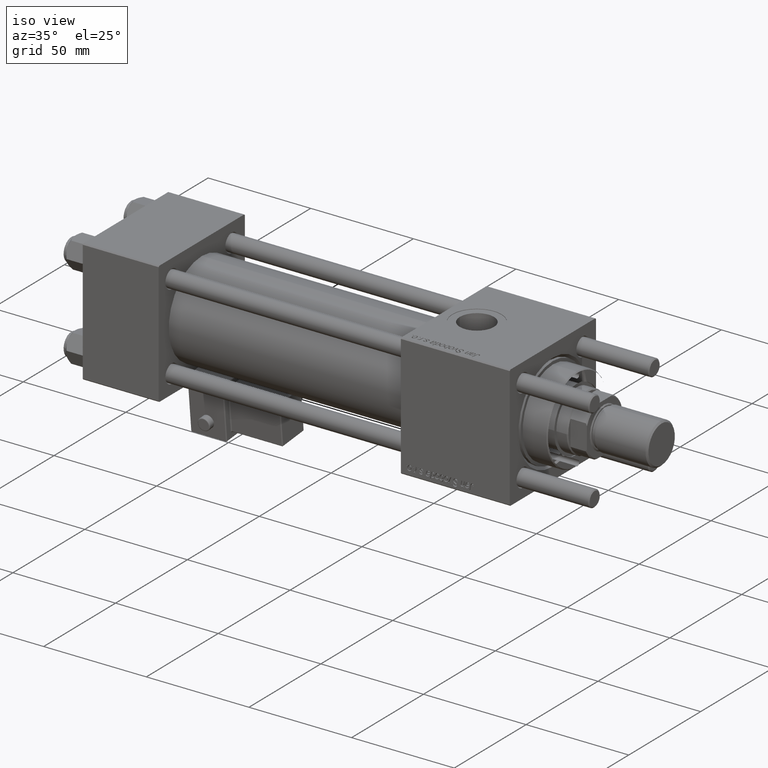
[diagram: clean part render]
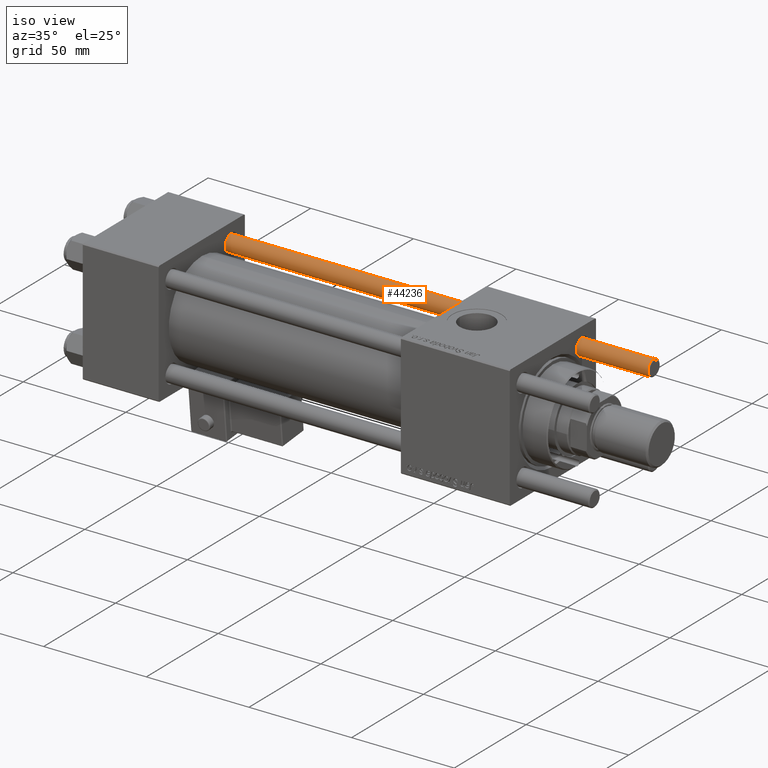
[diagram: same view with one face highlighted and labeled with its STEP entity id]
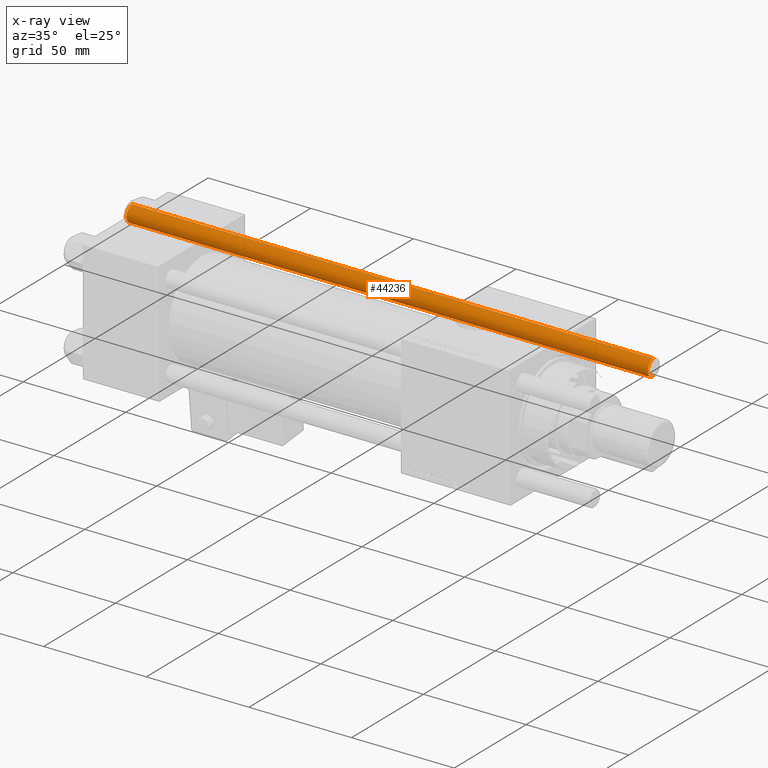
[diagram: x-ray of the same camera — body ghosted, the highlighted face saturated]
A machine part, iso view. The second image highlights one B-rep face of the part: STEP entity #44236.
The next image is the same camera in x-ray: the body ghosted, the highlighted face saturated — about 0% of this face is hidden behind the body in this view.
In plain terms, the highlighted cylindrical surface (edge-blend (fillet) strip) has radius 4 mm, axis along (1, -0, -0).
Its self-contained STEP definition (entity closure, byte-faithful):
#2575 = LINE ( 'NONE', #46277, #37410 ) ;
#3563 = VERTEX_POINT ( 'NONE', #29068 ) ;
#3618 = DIRECTION ( 'NONE',  ( 1.000000000000000000, 0.000000000000000000, 0.000000000000000000 ) ) ;
#4600 = CIRCLE ( 'NONE', #18472, 4.000000000000000000 ) ;
#7365 = DIRECTION ( 'NONE',  ( -0.000000000000000000, -0.000000000000000000, 1.000000000000000000 ) ) ;
#10125 = CYLINDRICAL_SURFACE ( 'NONE', #59187, 4.000000000000000000 ) ;
#10683 = CIRCLE ( 'NONE', #22587, 4.000000000000000000 ) ;
#11308 = EDGE_CURVE ( 'NONE', #3563, #60247, #4600, .T. ) ;
#12483 = VERTEX_POINT ( 'NONE', #42885 ) ;
#14666 = EDGE_CURVE ( 'NONE', #59440, #12483, #10683, .T. ) ;
#18472 = AXIS2_PLACEMENT_3D ( 'NONE', #30919, #7365, #3618 ) ;
#19669 = DIRECTION ( 'NONE',  ( 0.000000000000000000, 0.000000000000000000, -1.000000000000000000 ) ) ;
#22587 = AXIS2_PLACEMENT_3D ( 'NONE', #33925, #19669, #61261 ) ;
#24244 = EDGE_CURVE ( 'NONE', #12483, #3563, #35859, .T. ) ;
#24976 = DIRECTION ( 'NONE',  ( -0.000000000000000000, -0.000000000000000000, -1.000000000000000000 ) ) ;
#28701 = FACE_OUTER_BOUND ( 'NONE', #53152, .T. ) ;
#29068 = CARTESIAN_POINT ( 'NONE',  ( -4.000000000000000000, 0.000000000000000000, 0.5000000000000559552 ) ) ;
#30919 = CARTESIAN_POINT ( 'NONE',  ( 0.000000000000000000, 0.000000000000000000, 0.5000000000000559552 ) ) ;
#33087 = ORIENTED_EDGE ( 'NONE', *, *, #24244, .T. ) ;
#33265 = ORIENTED_EDGE ( 'NONE', *, *, #45991, .F. ) ;
#33925 = CARTESIAN_POINT ( 'NONE',  ( 0.000000000000000000, 0.000000000000000000, 254.4999999999999432 ) ) ;
#33963 = CARTESIAN_POINT ( 'NONE',  ( 0.000000000000000000, 0.000000000000000000, 255.0000000000000000 ) ) ;
#35859 = LINE ( 'NONE', #49534, #56454 ) ;
#37410 = VECTOR ( 'NONE', #40981, 1000.000000000000000 ) ;
#37691 = DIRECTION ( 'NONE',  ( -1.000000000000000000, 0.000000000000000000, 0.000000000000000000 ) ) ;
#40981 = DIRECTION ( 'NONE',  ( -0.000000000000000000, -0.000000000000000000, -1.000000000000000000 ) ) ;
#42885 = CARTESIAN_POINT ( 'NONE',  ( -4.000000000000000000, 0.000000000000000000, 254.4999999999999432 ) ) ;
#44236 = ADVANCED_FACE ( 'NONE', ( #28701 ), #10125, .T. ) ;
#44746 = CARTESIAN_POINT ( 'NONE',  ( 4.000000000000000000, 4.898587196589412829E-16, 254.4999999999999432 ) ) ;
#45991 = EDGE_CURVE ( 'NONE', #59440, #60247, #2575, .T. ) ;
#46277 = CARTESIAN_POINT ( 'NONE',  ( 4.000000000000000000, 4.898587196589412829E-16, 255.0000000000000000 ) ) ;
#47903 = ORIENTED_EDGE ( 'NONE', *, *, #14666, .T. ) ;
#49534 = CARTESIAN_POINT ( 'NONE',  ( -4.000000000000000000, 0.000000000000000000, 255.0000000000000000 ) ) ;
#52244 = CARTESIAN_POINT ( 'NONE',  ( 4.000000000000000000, 4.898587196589412829E-16, 0.5000000000000559552 ) ) ;
#53152 = EDGE_LOOP ( 'NONE', ( #33265, #47903, #33087, #57779 ) ) ;
#54488 = DIRECTION ( 'NONE',  ( -0.000000000000000000, -0.000000000000000000, -1.000000000000000000 ) ) ;
#56454 = VECTOR ( 'NONE', #54488, 1000.000000000000000 ) ;
#57779 = ORIENTED_EDGE ( 'NONE', *, *, #11308, .T. ) ;
#59187 = AXIS2_PLACEMENT_3D ( 'NONE', #33963, #24976, #37691 ) ;
#59440 = VERTEX_POINT ( 'NONE', #44746 ) ;
#60247 = VERTEX_POINT ( 'NONE', #52244 ) ;
#61261 = DIRECTION ( 'NONE',  ( 1.000000000000000000, 0.000000000000000000, 0.000000000000000000 ) ) ;